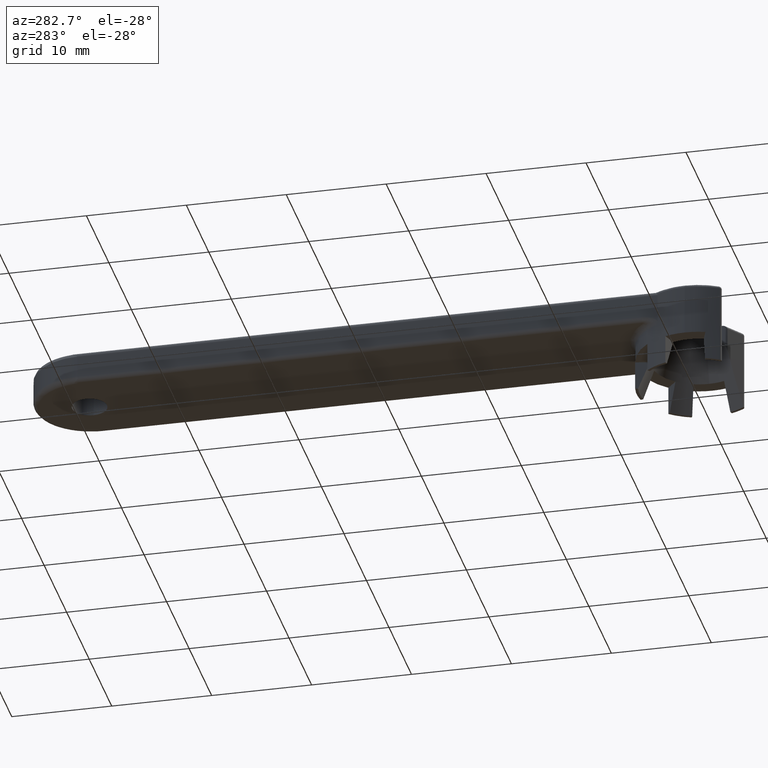
[diagram: clean part render]
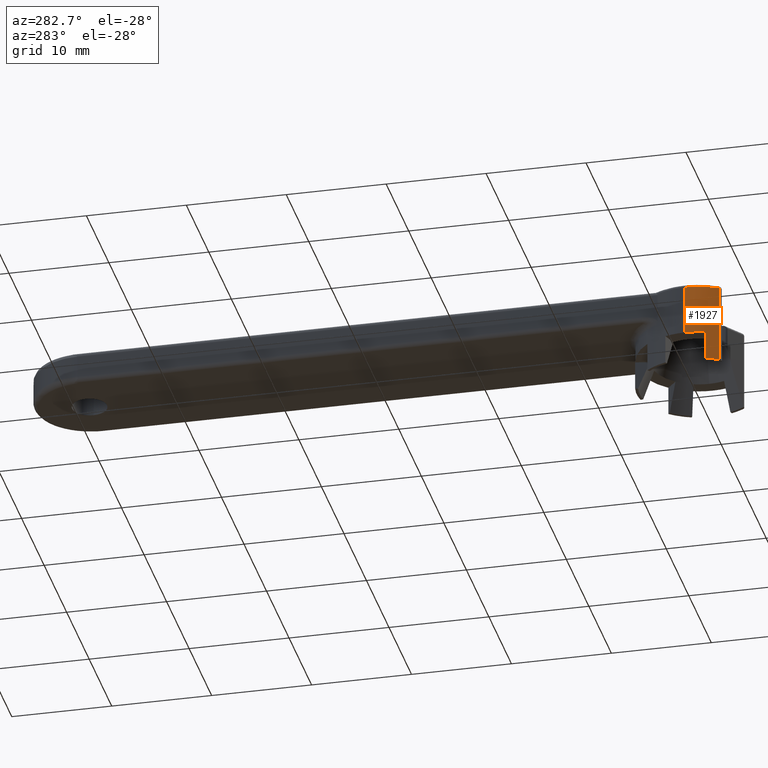
[diagram: same view with one face highlighted and labeled with its STEP entity id]
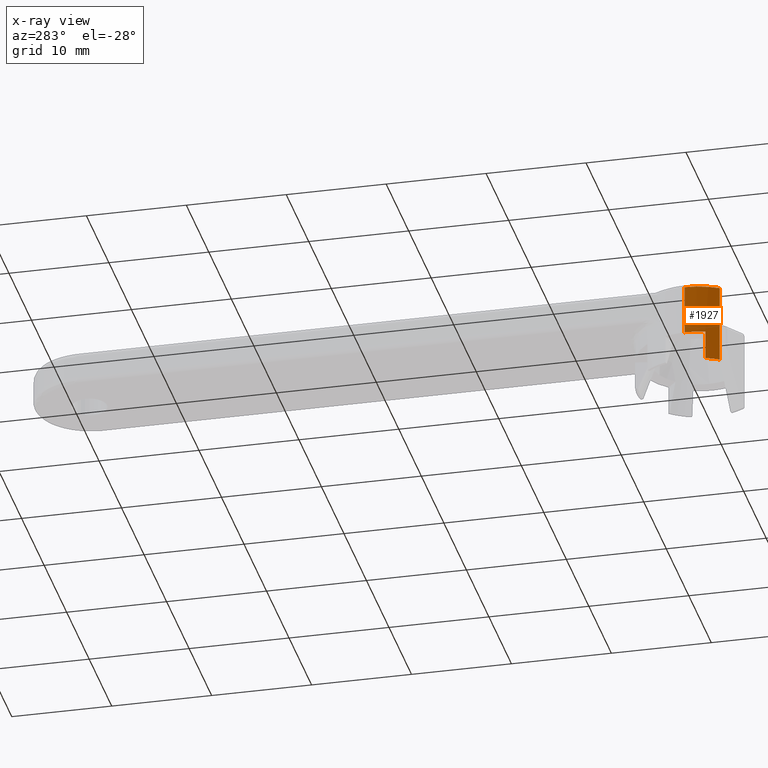
[diagram: x-ray of the same camera — body ghosted, the highlighted face saturated]
A machine part, auxiliary view. The second image highlights one B-rep face of the part: STEP entity #1927.
The next image is the same camera in x-ray: the body ghosted, the highlighted face saturated — about 0% of this face is hidden behind the body in this view.
In plain terms, the highlighted cylindrical surface (partial cylindrical patch) has radius 6.2 mm, axis along (0, -0, 1).
Its self-contained STEP definition (entity closure, byte-faithful):
#50 = CARTESIAN_POINT ( 'NONE',  ( -6.200000000000001100, 7.592810154713590800E-016, -8.199999999999999300 ) ) ;
#94 = VERTEX_POINT ( 'NONE', #161 ) ;
#137 = AXIS2_PLACEMENT_3D ( 'NONE', #921, #2168, #1099 ) ;
#140 = VERTEX_POINT ( 'NONE', #381 ) ;
#161 = CARTESIAN_POINT ( 'NONE',  ( -5.252995374590384800, -3.293332597484979200, -0.3000000012760339900 ) ) ;
#198 = LINE ( 'NONE', #50, #1925 ) ;
#233 = DIRECTION ( 'NONE',  ( 0.0000000000000000000, -0.0000000000000000000, 1.000000000000000000 ) ) ;
#256 = CARTESIAN_POINT ( 'NONE',  ( -5.869292935484234700, -1.997848952617504700, -5.299999998399997900 ) ) ;
#295 = DIRECTION ( 'NONE',  ( 0.0000000000000000000, -0.0000000000000000000, 1.000000000000000000 ) ) ;
#320 = VECTOR ( 'NONE', #713, 1000.000000000000000 ) ;
#362 = EDGE_CURVE ( 'NONE', #2175, #94, #456, .T. ) ;
#381 = CARTESIAN_POINT ( 'NONE',  ( -5.252995374305145400, -3.293332597464365500, -8.199999999999999300 ) ) ;
#394 = AXIS2_PLACEMENT_3D ( 'NONE', #746, #1986, #932 ) ;
#456 = CIRCLE ( 'NONE', #1103, 6.199999998935481000 ) ;
#479 = CIRCLE ( 'NONE', #394, 6.200000000000001100 ) ;
#490 = ORIENTED_EDGE ( 'NONE', *, *, #362, .F. ) ;
#527 = CIRCLE ( 'NONE', #137, 6.200000000000001100 ) ;
#553 = ORIENTED_EDGE ( 'NONE', *, *, #1800, .F. ) ;
#580 = CARTESIAN_POINT ( 'NONE',  ( -1.270587801638356500E-009, -2.303698707534191400E-032, -0.2999999998074305800 ) ) ;
#598 = CARTESIAN_POINT ( 'NONE',  ( 0.0000000000000000000, 0.0000000000000000000, -8.199999999999999300 ) ) ;
#672 = CARTESIAN_POINT ( 'NONE',  ( -5.869292935666558200, -1.997848952081877000, -8.199999999999999300 ) ) ;
#713 = DIRECTION ( 'NONE',  ( -0.0000000000000000000, -0.0000000000000000000, -1.000000000000000000 ) ) ;
#746 = CARTESIAN_POINT ( 'NONE',  ( 0.0000000000000000000, 0.0000000000000000000, -5.299999996799996000 ) ) ;
#838 = ORIENTED_EDGE ( 'NONE', *, *, #2277, .F. ) ;
#867 = EDGE_CURVE ( 'NONE', #2323, #2175, #198, .T. ) ;
#912 = CYLINDRICAL_SURFACE ( 'NONE', #1195, 6.200000000000001100 ) ;
#921 = CARTESIAN_POINT ( 'NONE',  ( 0.0000000000000000000, 0.0000000000000000000, -8.199999999999999300 ) ) ;
#932 = DIRECTION ( 'NONE',  ( 1.000000000000000000, 3.552713678800500900E-015, 0.0000000000000000000 ) ) ;
#1007 = EDGE_LOOP ( 'NONE', ( #1119, #1571, #553, #838, #1497, #490 ) ) ;
#1099 = DIRECTION ( 'NONE',  ( 1.000000000000000000, -5.329070518200750600E-015, 0.0000000000000000000 ) ) ;
#1103 = AXIS2_PLACEMENT_3D ( 'NONE', #580, #1646, #1465 ) ;
#1119 = ORIENTED_EDGE ( 'NONE', *, *, #867, .F. ) ;
#1187 = VECTOR ( 'NONE', #2111, 1000.000000000000000 ) ;
#1195 = AXIS2_PLACEMENT_3D ( 'NONE', #598, #233, #1844 ) ;
#1249 = LINE ( 'NONE', #1933, #1187 ) ;
#1278 = LINE ( 'NONE', #2144, #320 ) ;
#1347 = VERTEX_POINT ( 'NONE', #256 ) ;
#1465 = DIRECTION ( 'NONE',  ( 1.000000000000000000, 0.0000000000000000000, -1.573841863555632900E-016 ) ) ;
#1497 = ORIENTED_EDGE ( 'NONE', *, *, #2003, .F. ) ;
#1571 = ORIENTED_EDGE ( 'NONE', *, *, #2321, .F. ) ;
#1583 = CARTESIAN_POINT ( 'NONE',  ( -6.200000000147984000, -1.271641256795053100E-009, -0.2999999998555727400 ) ) ;
#1610 = CARTESIAN_POINT ( 'NONE',  ( -6.200000000000001100, 7.592810154713590800E-016, -5.299999996799996000 ) ) ;
#1646 = DIRECTION ( 'NONE',  ( 1.607584235393691000E-016, 4.622641844068986300E-017, 1.000000000000000000 ) ) ;
#1769 = VERTEX_POINT ( 'NONE', #672 ) ;
#1800 = EDGE_CURVE ( 'NONE', #1769, #1347, #1249, .T. ) ;
#1844 = DIRECTION ( 'NONE',  ( 1.000000000000000000, 0.0000000000000000000, 0.0000000000000000000 ) ) ;
#1856 = FACE_OUTER_BOUND ( 'NONE', #1007, .T. ) ;
#1925 = VECTOR ( 'NONE', #295, 1000.000000000000000 ) ;
#1927 = ADVANCED_FACE ( 'NONE', ( #1856 ), #912, .T. ) ;
#1933 = CARTESIAN_POINT ( 'NONE',  ( -5.869292935301912100, -1.997848953153132300, -4.249999999999999100 ) ) ;
#1986 = DIRECTION ( 'NONE',  ( -0.0000000000000000000, 0.0000000000000000000, -1.000000000000000000 ) ) ;
#2003 = EDGE_CURVE ( 'NONE', #94, #140, #1278, .T. ) ;
#2111 = DIRECTION ( 'NONE',  ( 0.0000000000000000000, 0.0000000000000000000, 1.000000000000000000 ) ) ;
#2144 = CARTESIAN_POINT ( 'NONE',  ( -5.252995374067866800, -3.293332597843952900, -4.249999999999999100 ) ) ;
#2168 = DIRECTION ( 'NONE',  ( -0.0000000000000000000, 0.0000000000000000000, -1.000000000000000000 ) ) ;
#2175 = VERTEX_POINT ( 'NONE', #1583 ) ;
#2277 = EDGE_CURVE ( 'NONE', #140, #1769, #527, .T. ) ;
#2321 = EDGE_CURVE ( 'NONE', #1347, #2323, #479, .T. ) ;
#2323 = VERTEX_POINT ( 'NONE', #1610 ) ;